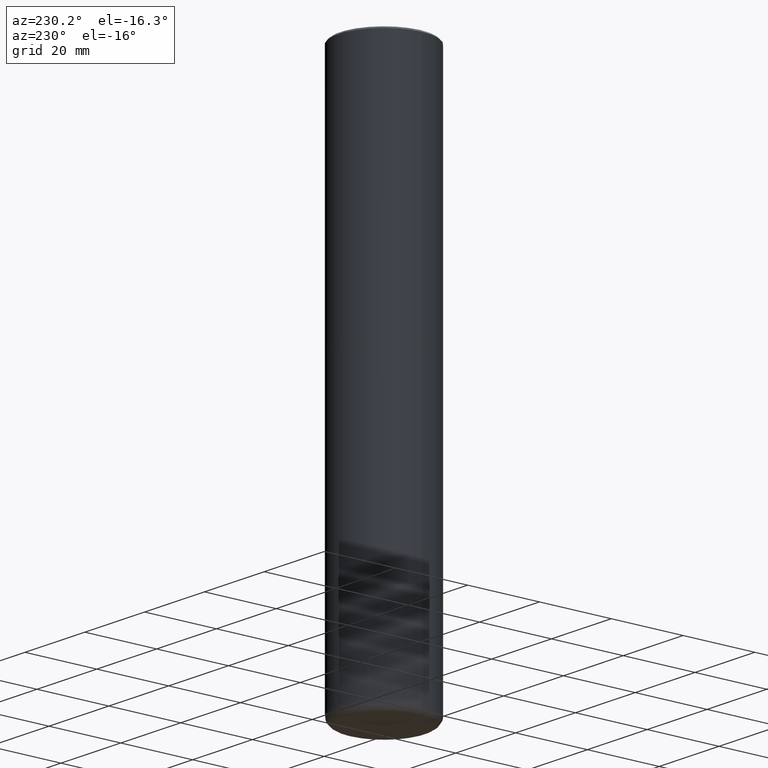
[diagram: clean part render]
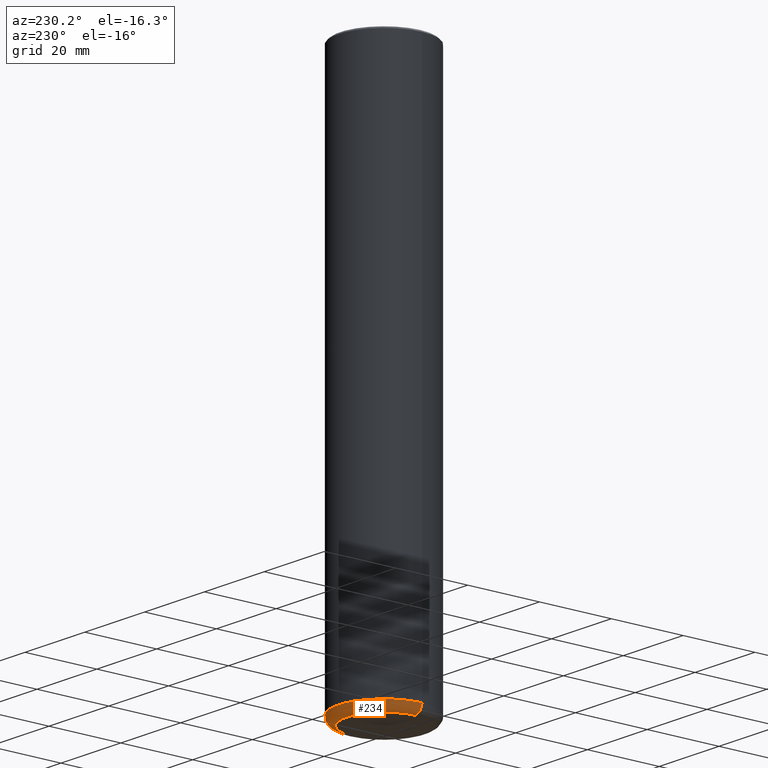
[diagram: same view with one face highlighted and labeled with its STEP entity id]
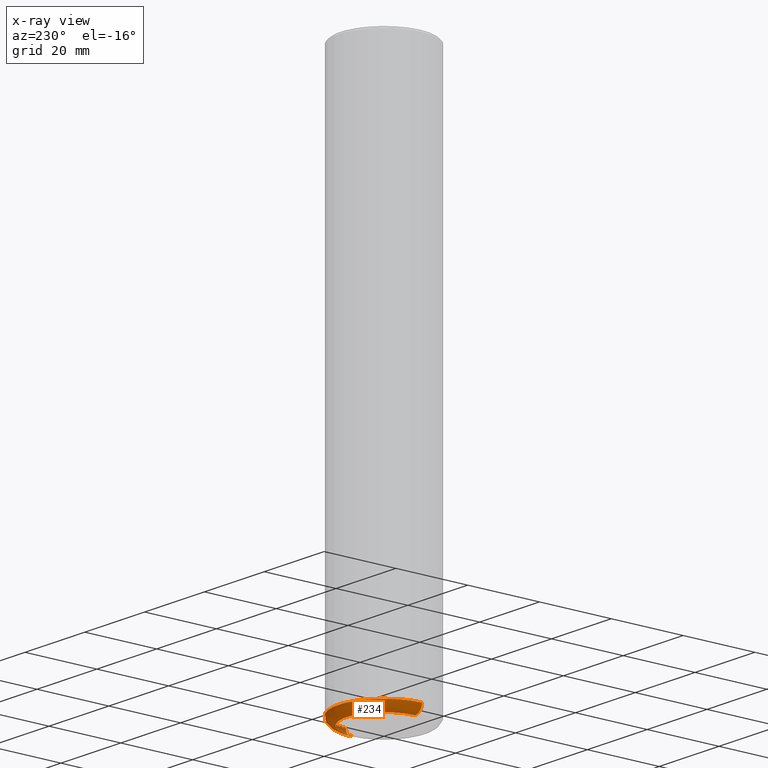
[diagram: x-ray of the same camera — body ghosted, the highlighted face saturated]
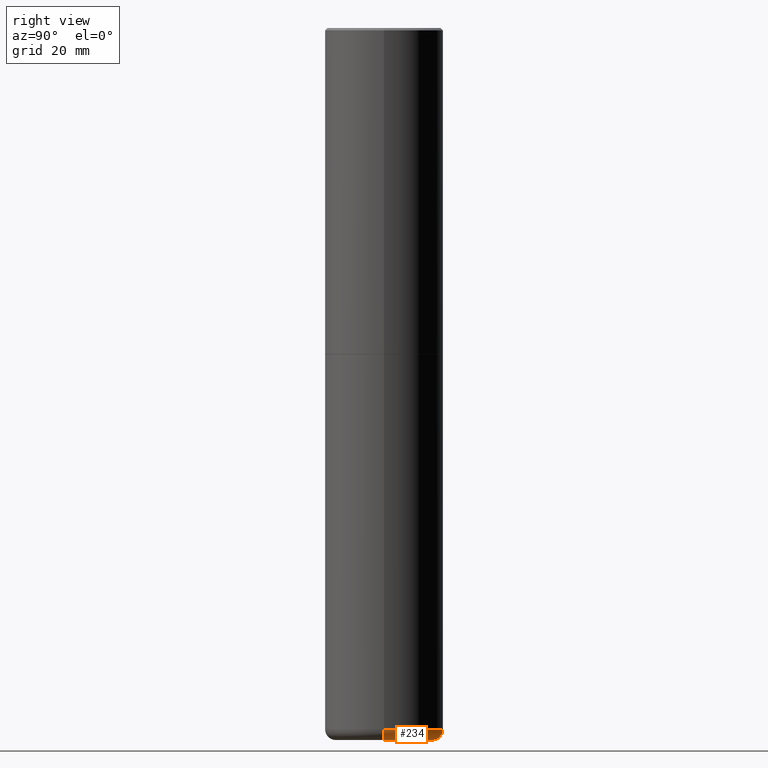
[diagram: same view with one face highlighted and labeled with its STEP entity id]
A machine part, auxiliary view. The second image highlights one B-rep face of the part: STEP entity #234.
The next image is the same camera in x-ray: the body ghosted, the highlighted face saturated — about 0% of this face is hidden behind the body in this view.
A second angle (right view) of the same face is appended — the face is thin or edge-on in the first view.
In plain terms, the highlighted toroidal blend (fillet) surface has major radius 10.414 mm and minor (blend) radius 2.286 mm.
Its self-contained STEP definition (entity closure, byte-faithful):
#5 = VERTEX_POINT ( 'NONE', #353 ) ;
#29 = DIRECTION ( 'NONE',  ( -6.982962677686266711E-15, -1.000000000000000000, 3.491481338843145583E-15 ) ) ;
#36 = AXIS2_PLACEMENT_3D ( 'NONE', #488, #150, #78 ) ;
#44 = CARTESIAN_POINT ( 'NONE',  ( 1.445272902499044541E-28, -2.063466667760496652E-14, -5.910003426924223646 ) ) ;
#67 = AXIS2_PLACEMENT_3D ( 'NONE', #404, #211, #360 ) ;
#78 = DIRECTION ( 'NONE',  ( 1.000000000000000000, -6.982962677686265133E-15, 4.883557194083112340E-29 ) ) ;
#87 = DIRECTION ( 'NONE',  ( 7.105427357601001859E-15, 1.000000000000000000, -3.491481338843145583E-15 ) ) ;
#97 = CIRCLE ( 'NONE', #314, 0.09000000000000060729 ) ;
#104 = CARTESIAN_POINT ( 'NONE',  ( 0.4100000000000003642, -2.349768137545633650E-14, -5.910003426924223646 ) ) ;
#116 = AXIS2_PLACEMENT_3D ( 'NONE', #403, #87, #276 ) ;
#126 = DIRECTION ( 'NONE',  ( 1.000000000000000000, -6.982962677686269077E-15, 0.000000000000000000 ) ) ;
#127 = ORIENTED_EDGE ( 'NONE', *, *, #492, .T. ) ;
#132 = EDGE_CURVE ( 'NONE', #433, #236, #372, .T. ) ;
#144 = DIRECTION ( 'NONE',  ( 1.000000000000000000, -6.982962677686264344E-15, 0.000000000000000000 ) ) ;
#150 = DIRECTION ( 'NONE',  ( -2.445468806185136597E-29, 3.491481338843145583E-15, 1.000000000000000000 ) ) ;
#151 = AXIS2_PLACEMENT_3D ( 'NONE', #44, #323, #126 ) ;
#178 = CIRCLE ( 'NONE', #116, 0.09000000000000060729 ) ;
#211 = DIRECTION ( 'NONE',  ( -2.445468806185136597E-29, 3.491481338843145583E-15, 1.000000000000000000 ) ) ;
#223 = ORIENTED_EDGE ( 'NONE', *, *, #267, .F. ) ;
#225 = FACE_OUTER_BOUND ( 'NONE', #242, .T. ) ;
#234 = ADVANCED_FACE ( 'NONE', ( #225 ), #278, .T. ) ;
#236 = VERTEX_POINT ( 'NONE', #378 ) ;
#242 = EDGE_LOOP ( 'NONE', ( #440, #127, #223, #349 ) ) ;
#249 = CARTESIAN_POINT ( 'NONE',  ( -0.5000000000000001110, -1.156540650091130647E-14, -5.910003426924223646 ) ) ;
#267 = EDGE_CURVE ( 'NONE', #5, #279, #436, .T. ) ;
#276 = DIRECTION ( 'NONE',  ( -1.000000000000000000, 7.105427357601006592E-15, 0.000000000000000000 ) ) ;
#278 = TOROIDAL_SURFACE ( 'NONE', #36, 0.4100000000000003642, 0.09000000000000064893 ) ;
#279 = VERTEX_POINT ( 'NONE', #249 ) ;
#314 = AXIS2_PLACEMENT_3D ( 'NONE', #104, #29, #144 ) ;
#323 = DIRECTION ( 'NONE',  ( -2.445468806185136597E-29, 3.491481338843145583E-15, 1.000000000000000000 ) ) ;
#349 = ORIENTED_EDGE ( 'NONE', *, *, #424, .F. ) ;
#353 = CARTESIAN_POINT ( 'NONE',  ( 0.5000000000000001110, -2.412614801644810303E-14, -5.910003426924223646 ) ) ;
#360 = DIRECTION ( 'NONE',  ( 1.000000000000000000, -6.982962677686265922E-15, 0.000000000000000000 ) ) ;
#372 = CIRCLE ( 'NONE', #67, 0.4092146118051471215 ) ;
#378 = CARTESIAN_POINT ( 'NONE',  ( -0.4092146118051471215, -1.756159816700647873E-14, -5.999999999999999112 ) ) ;
#403 = CARTESIAN_POINT ( 'NONE',  ( -0.4100000000000003642, -1.772144146098855475E-14, -5.910003426924223646 ) ) ;
#404 = CARTESIAN_POINT ( 'NONE',  ( 1.467281283711081734E-28, -2.094888803305886955E-14, -5.999999999999999112 ) ) ;
#424 = EDGE_CURVE ( 'NONE', #433, #5, #97, .T. ) ;
#433 = VERTEX_POINT ( 'NONE', #486 ) ;
#436 = CIRCLE ( 'NONE', #151, 0.5000000000000001110 ) ;
#440 = ORIENTED_EDGE ( 'NONE', *, *, #132, .T. ) ;
#486 = CARTESIAN_POINT ( 'NONE',  ( 0.4092146118051471215, -2.380641839445808757E-14, -5.999999999999999112 ) ) ;
#488 = CARTESIAN_POINT ( 'NONE',  ( 1.445272902499044541E-28, -2.063466667760496652E-14, -5.910003426924223646 ) ) ;
#492 = EDGE_CURVE ( 'NONE', #236, #279, #178, .T. ) ;